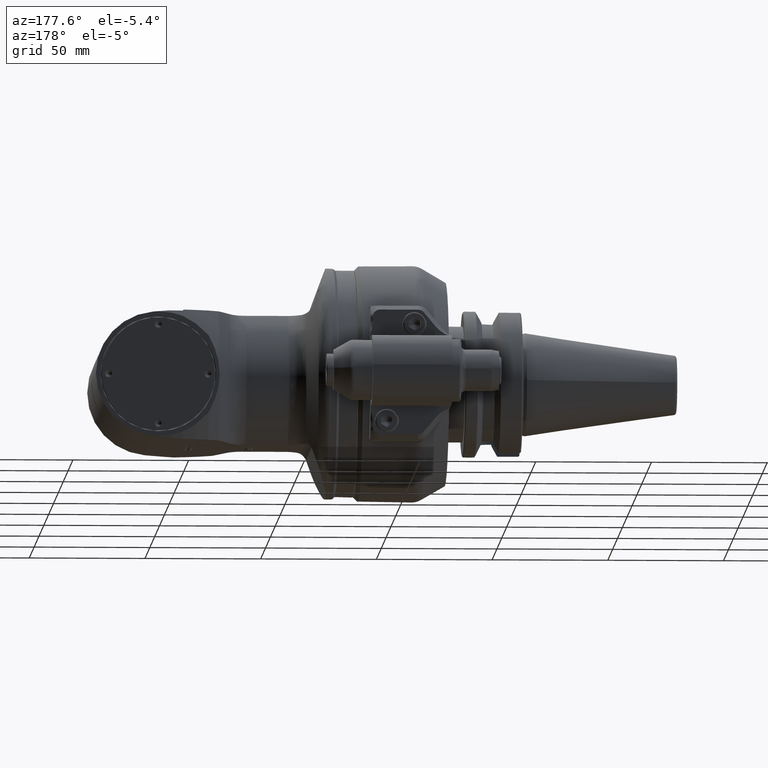
[diagram: clean part render]
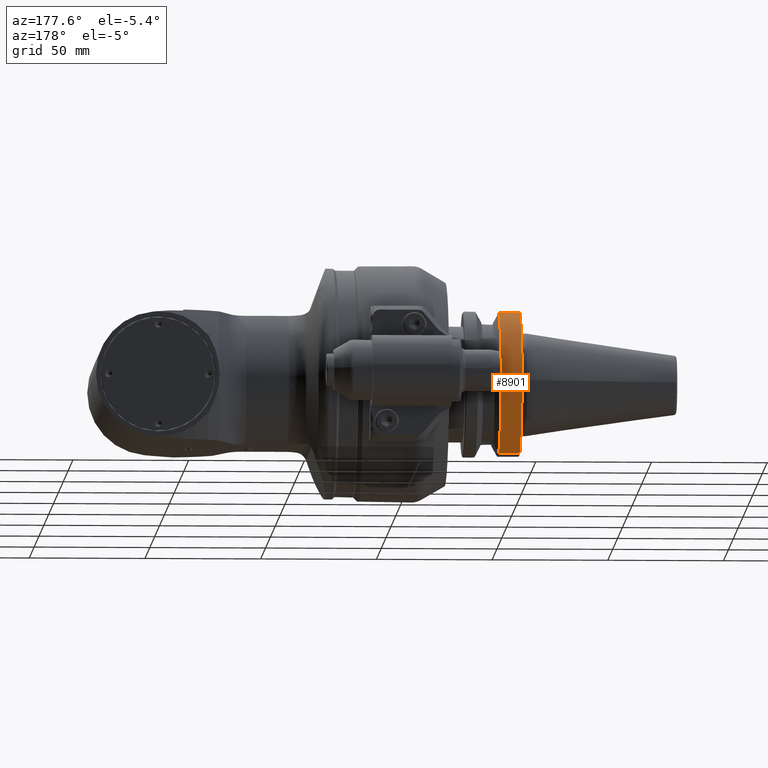
[diagram: same view with one face highlighted and labeled with its STEP entity id]
A machine part, auxiliary view. The second image highlights one B-rep face of the part: STEP entity #8901.
In plain terms, the highlighted cylindrical surface (partial cylindrical patch) has radius 31.5 mm, axis along (1, 0, 0).
Its self-contained STEP definition (entity closure, byte-faithful):
#721=CYLINDRICAL_SURFACE('',#9853,31.5);
#1079=CIRCLE('',#9852,31.5);
#1080=CIRCLE('',#9854,31.5);
#1585=FACE_OUTER_BOUND('',#2177,.T.);
#2177=EDGE_LOOP('',(#7743,#7744,#7745,#7746));
#2748=LINE('',#45996,#3309);
#2751=LINE('',#46019,#3312);
#3309=VECTOR('',#12076,9.09984426565714);
#3312=VECTOR('',#12087,9.09984426542314);
#4125=VERTEX_POINT('',#45990);
#4127=VERTEX_POINT('',#45995);
#4129=VERTEX_POINT('',#46012);
#4130=VERTEX_POINT('',#46018);
#5360=EDGE_CURVE('',#4127,#4125,#2748,.T.);
#5366=EDGE_CURVE('',#4129,#4125,#1079,.T.);
#5367=EDGE_CURVE('',#4129,#4130,#2751,.T.);
#5368=EDGE_CURVE('',#4127,#4130,#1080,.T.);
#7743=ORIENTED_EDGE('',*,*,#5360,.T.);
#7744=ORIENTED_EDGE('',*,*,#5366,.F.);
#7745=ORIENTED_EDGE('',*,*,#5367,.T.);
#7746=ORIENTED_EDGE('',*,*,#5368,.F.);
#8901=ADVANCED_FACE('',(#1585),#721,.T.);
#9852=AXIS2_PLACEMENT_3D('',#46016,#12083,#12084);
#9853=AXIS2_PLACEMENT_3D('',#46017,#12085,#12086);
#9854=AXIS2_PLACEMENT_3D('',#46020,#12088,#12089);
#12076=DIRECTION('',(0.999999999999985,1.67431091075297E-7,-4.42575578311993E-8));
#12083=DIRECTION('center_axis',(1.,0.,0.));
#12084=DIRECTION('ref_axis',(0.,1.,0.));
#12085=DIRECTION('center_axis',(1.,0.,0.));
#12086=DIRECTION('ref_axis',(0.,1.,1.22464679914735E-16));
#12087=DIRECTION('',(-0.999999999999985,-1.67434231185598E-7,-4.42583874637393E-8));
#12088=DIRECTION('center_axis',(-1.,0.,0.));
#12089=DIRECTION('ref_axis',(0.,0.255555555555586,0.966794372151946));
#45990=CARTESIAN_POINT('',(-74.400141965164,8.05000076617348,30.4540224465307));
#45995=CARTESIAN_POINT('',(-83.5,8.05,30.45402272279));
#45996=CARTESIAN_POINT('',(-83.5,8.05,30.45402272279));
#46012=CARTESIAN_POINT('',(-74.4001419651629,8.05000076618795,-30.4540224465229));
#46016=CARTESIAN_POINT('Origin',(-74.40014200632,0.,0.));
#46017=CARTESIAN_POINT('Origin',(-71.5,0.,0.));
#46018=CARTESIAN_POINT('',(-83.5,8.05,-30.45402272279));
#46019=CARTESIAN_POINT('',(-74.40015573458,8.050001523625,-30.45402232004));
#46020=CARTESIAN_POINT('Origin',(-83.5,0.,0.));